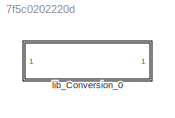
MODEL slx_7f5c0202220d
KIND library
CONFIG AbsTol = auto
CONFIG EnableMultiTasking = off
CONFIG FixedStep = auto
CONFIG MaxStep = auto
CONFIG MinStep = auto
CONFIG RelTol = 1e-3
CONFIG SampleTimeConstraint = Unconstrained
CONFIG SolverName = VariableStepAuto
CONFIG StartTime = 0.0
CONFIG StopTime = 10.0
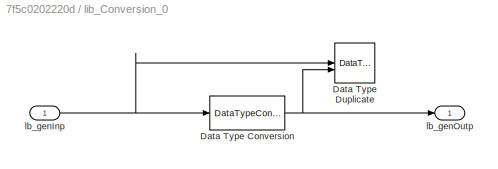
BLOCK [SubSystem] lib_Conversion_0
BLOCK [DataTypeConversion] lib_Conversion_0/Data Type Conversion
  OutDataTypeStr = lb_parIntDataType
  RndMeth = Floor
  SaturateOnIntegerOverflow = off
BLOCK [DataTypeDuplicate] lib_Conversion_0/Data Type Duplicate
BLOCK [Inport] lib_Conversion_0/lb_genInp
BLOCK [Outport] lib_Conversion_0/lb_genOutp
NET lib_Conversion_0/Data Type Conversion:1 -> lib_Conversion_0/Data Type Duplicate:2, lib_Conversion_0/lb_genOutp:1
NET lib_Conversion_0/lb_genInp:1 -> lib_Conversion_0/Data Type Conversion:1, lib_Conversion_0/Data Type Duplicate:1
note: NET lines group one-source signal fan-out (src -> all destinations, sorted); 1:1 wires keep LINE
